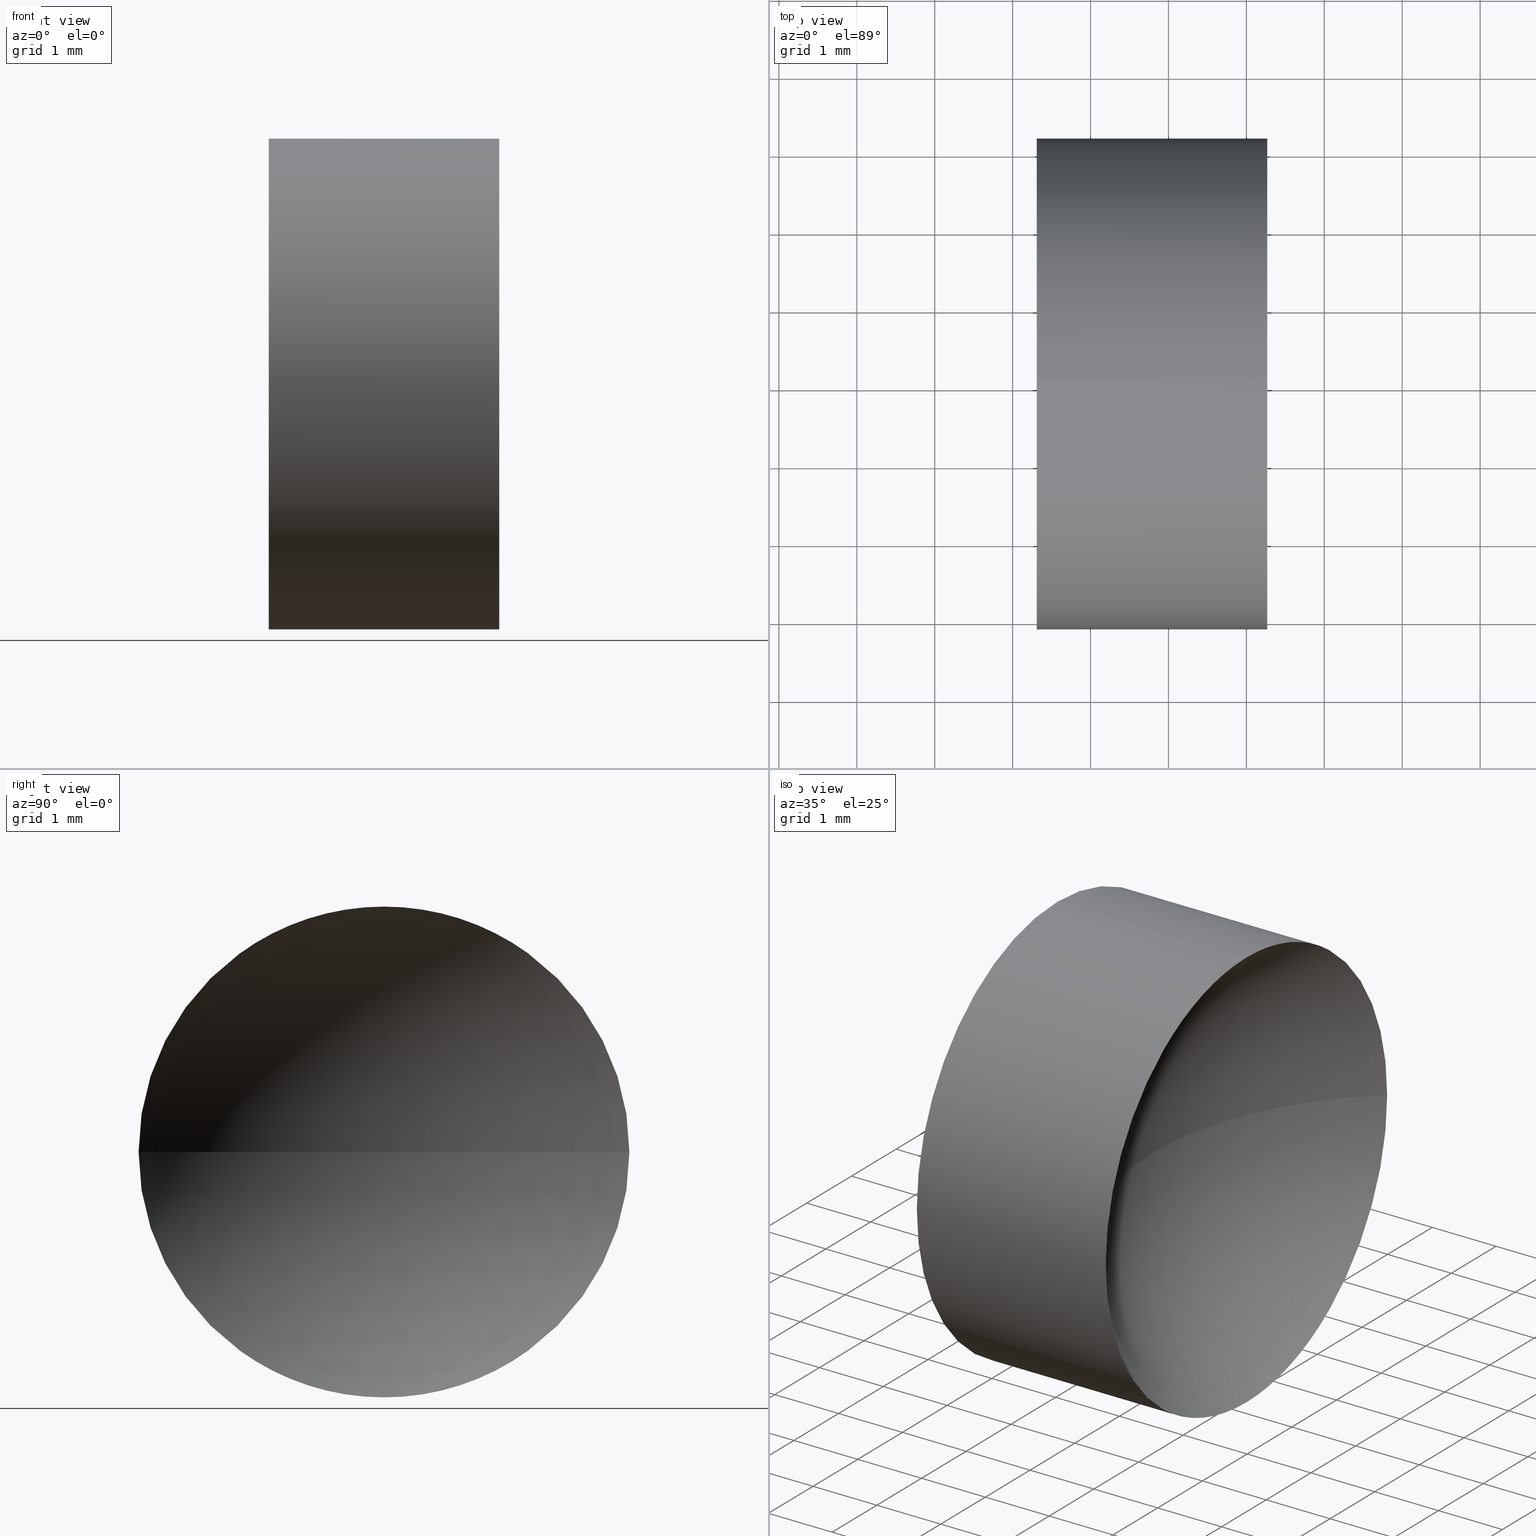
[diagram: canonical four-view strip — front | top / right | iso, engineering-drawing reading convention]
A machine part, canonical four-view strip (front | top / right | iso — engineering-drawing reading convention). The complete STEP part file that produces these views, byte-faithful:
ISO-10303-21;
HEADER;
FILE_DESCRIPTION (( 'STEP AP214' ),
    '1' );
FILE_NAME ('120123.STEP',
    '2019-06-19T01:41:41',
    ( '' ),
    ( '' ),
    'SwSTEP 2.0',
    'SolidWorks 2016',
    '' );
FILE_SCHEMA (( 'AUTOMOTIVE_DESIGN' ));
ENDSEC;

DATA;
#1 = DIRECTION ( 'NONE',  ( 0.0000000000000000000, -1.000000000000000000, 0.0000000000000000000 ) ) ;
#2 = DIRECTION ( 'NONE',  ( -1.000000000000000000, 0.0000000000000000000, 0.0000000000000000000 ) ) ;
#3 = DIRECTION ( 'NONE',  ( 0.0000000000000000000, 0.0000000000000000000, -1.000000000000000000 ) ) ;
#4 = DIRECTION ( 'NONE',  ( -1.000000000000000000, -0.0000000000000000000, -0.0000000000000000000 ) ) ;
#5 = ADVANCED_FACE ( 'NONE', ( #135 ), #50, .T. ) ;
#6 = SURFACE_STYLE_FILL_AREA ( #139 ) ;
#7 = EDGE_CURVE ( 'NONE', #125, #131, #18, .T. ) ;
#8 =( GEOMETRIC_REPRESENTATION_CONTEXT ( 3 ) GLOBAL_UNCERTAINTY_ASSIGNED_CONTEXT ( ( #62 ) ) GLOBAL_UNIT_ASSIGNED_CONTEXT ( ( #151, #165, #79 ) ) REPRESENTATION_CONTEXT ( 'NONE', 'WORKASPACE' ) );
#9 = ADVANCED_BREP_SHAPE_REPRESENTATION ( '120123', ( #123, #64 ), #160 ) ;
#10 = ORIENTED_EDGE ( 'NONE', *, *, #112, .T. ) ;
#11 = DIRECTION ( 'NONE',  ( 0.0000000000000000000, 0.0000000000000000000, 1.000000000000000000 ) ) ;
#12 = APPLICATION_PROTOCOL_DEFINITION ( 'draft international standard', 'automotive_design', 1998, #164 ) ;
#13 = CARTESIAN_POINT ( 'NONE',  ( 20.68403063513288800, 13.03112609140304000, -3.149999999999998100 ) ) ;
#14 = CARTESIAN_POINT ( 'NONE',  ( 25.26823906860704800, 13.03112609140304000, -3.149999999999998100 ) ) ;
#15 = SURFACE_STYLE_USAGE ( .BOTH. , #181 ) ;
#16 = CARTESIAN_POINT ( 'NONE',  ( 25.26823906860704800, 13.03112609140304000, 0.0000000000000000000 ) ) ;
#17 = PRODUCT_DEFINITION_SHAPE ( 'NONE', 'NONE',  #55 ) ;
#18 = CIRCLE ( 'NONE', #133, 3.149999999999998100 ) ;
#19 = AXIS2_PLACEMENT_3D ( 'NONE', #35, #4, #128 ) ;
#20 = MECHANICAL_DESIGN_GEOMETRIC_PRESENTATION_REPRESENTATION (  '', ( #178 ), #8 ) ;
#21 = CARTESIAN_POINT ( 'NONE',  ( 20.68403063513288800, 13.03112609140304000, 3.149999999999998100 ) ) ;
#22 = VERTEX_POINT ( 'NONE', #31 ) ;
#23 = ORIENTED_EDGE ( 'NONE', *, *, #51, .F. ) ;
#24 = FACE_OUTER_BOUND ( 'NONE', #91, .T. ) ;
#25 = VERTEX_POINT ( 'NONE', #150 ) ;
#26 = FACE_OUTER_BOUND ( 'NONE', #176, .T. ) ;
#27 = ORIENTED_EDGE ( 'NONE', *, *, #43, .F. ) ;
#28 = AXIS2_PLACEMENT_3D ( 'NONE', #155, #80, #173 ) ;
#29 =( NAMED_UNIT ( * ) SI_UNIT ( $, .STERADIAN. ) SOLID_ANGLE_UNIT ( ) );
#30 = CARTESIAN_POINT ( 'NONE',  ( 25.26823906860704800, 16.18112609140303700, 3.857637417314161200E-016 ) ) ;
#31 = CARTESIAN_POINT ( 'NONE',  ( 25.26823906860704800, 13.03112609140304000, 3.149999999999998100 ) ) ;
#32 = ORIENTED_EDGE ( 'NONE', *, *, #70, .T. ) ;
#33 = CARTESIAN_POINT ( 'NONE',  ( 27.93926883257449500, 13.03112609140304000, 0.0000000000000000000 ) ) ;
#34 = CYLINDRICAL_SURFACE ( 'NONE', #109, 3.149999999999998100 ) ;
#35 = CARTESIAN_POINT ( 'NONE',  ( 22.30926883257449200, 13.03112609140304000, 0.0000000000000000000 ) ) ;
#36 = PRESENTATION_LAYER_ASSIGNMENT (  '', '', ( #111 ) ) ;
#37 = AXIS2_PLACEMENT_3D ( 'NONE', #16, #61, #102 ) ;
#38 =( NAMED_UNIT ( * ) PLANE_ANGLE_UNIT ( ) SI_UNIT ( $, .RADIAN. ) );
#39 = SHAPE_DEFINITION_REPRESENTATION ( #17, #9 ) ;
#40 = SURFACE_SIDE_STYLE ('',( #110 ) ) ;
#41 = DIRECTION ( 'NONE',  ( -1.000000000000000000, -0.0000000000000000000, -0.0000000000000000000 ) ) ;
#42 = DIRECTION ( 'NONE',  ( 0.0000000000000000000, -1.224646799147353200E-016, 1.000000000000000000 ) ) ;
#43 = EDGE_CURVE ( 'NONE', #163, #131, #60, .T. ) ;
#44 = DIRECTION ( 'NONE',  ( 1.000000000000000000, 0.0000000000000000000, 0.0000000000000000000 ) ) ;
#45 = PRODUCT ( '120123', '120123', '', ( #75 ) ) ;
#46 = CIRCLE ( 'NONE', #28, 3.149999999999998100 ) ;
#47 = PRODUCT_RELATED_PRODUCT_CATEGORY ( 'part', '', ( #45 ) ) ;
#48 = EDGE_LOOP ( 'NONE', ( #90, #134, #121, #126, #49 ) ) ;
#49 = ORIENTED_EDGE ( 'NONE', *, *, #51, .T. ) ;
#50 = CYLINDRICAL_SURFACE ( 'NONE', #97, 3.149999999999998100 ) ;
#51 = EDGE_CURVE ( 'NONE', #22, #161, #132, .T. ) ;
#52 = ORIENTED_EDGE ( 'NONE', *, *, #148, .T. ) ;
#53 = CARTESIAN_POINT ( 'NONE',  ( 0.0000000000000000000, 0.0000000000000000000, 0.0000000000000000000 ) ) ;
#54 =( LENGTH_UNIT ( ) NAMED_UNIT ( * ) SI_UNIT ( .MILLI., .METRE. ) );
#55 = PRODUCT_DEFINITION ( 'δ֪', '', #71, #98 ) ;
#56 = CARTESIAN_POINT ( 'NONE',  ( 23.80926883257449600, 13.03112609140304000, 0.0000000000000000000 ) ) ;
#57 = DIRECTION ( 'NONE',  ( 0.0000000000000000000, 0.0000000000000000000, -1.000000000000000000 ) ) ;
#58 = COLOUR_RGB ( '',1.000000000000000000, 1.000000000000000000, 1.000000000000000000 ) ;
#59 = DIRECTION ( 'NONE',  ( -1.000000000000000000, -0.0000000000000000000, -0.0000000000000000000 ) ) ;
#60 = LINE ( 'NONE', #13, #169 ) ;
#61 = DIRECTION ( 'NONE',  ( -1.000000000000000000, -0.0000000000000000000, -0.0000000000000000000 ) ) ;
#62 = UNCERTAINTY_MEASURE_WITH_UNIT (LENGTH_MEASURE( 1.000000000000000100E-005 ), #151, 'distance_accuracy_value', 'NONE');
#63 = ORIENTED_EDGE ( 'NONE', *, *, #70, .F. ) ;
#64 = AXIS2_PLACEMENT_3D ( 'NONE', #53, #11, #149 ) ;
#65 = ADVANCED_FACE ( 'NONE', ( #157 ), #68, .F. ) ;
#66 = DIRECTION ( 'NONE',  ( 0.0000000000000000000, 0.0000000000000000000, 1.000000000000000000 ) ) ;
#67 = ORIENTED_EDGE ( 'NONE', *, *, #172, .F. ) ;
#68 = SPHERICAL_SURFACE ( 'NONE', #122, 4.129999999999998100 ) ;
#69 = COLOUR_RGB ( '',1.000000000000000000, 1.000000000000000000, 1.000000000000000000 ) ;
#70 = EDGE_CURVE ( 'NONE', #163, #25, #46, .T. ) ;
#71 = PRODUCT_DEFINITION_FORMATION_WITH_SPECIFIED_SOURCE ( '�κ�', '', #45, .NOT_KNOWN. ) ;
#72 = CARTESIAN_POINT ( 'NONE',  ( 25.26823906860704800, 13.03112609140304000, 0.0000000000000000000 ) ) ;
#73 = CLOSED_SHELL ( 'NONE', ( #119, #65, #120, #5, #93 ) ) ;
#74 = FILL_AREA_STYLE_COLOUR ( '', #69 ) ;
#75 = PRODUCT_CONTEXT ( 'NONE', #164, 'mechanical' ) ;
#76 = DIRECTION ( 'NONE',  ( -1.000000000000000000, -0.0000000000000000000, -0.0000000000000000000 ) ) ;
#77 = PRESENTATION_STYLE_ASSIGNMENT (( #15 ) ) ;
#78 = CARTESIAN_POINT ( 'NONE',  ( 27.93926883257449500, 13.03112609140304000, 0.0000000000000000000 ) ) ;
#79 =( NAMED_UNIT ( * ) SI_UNIT ( $, .STERADIAN. ) SOLID_ANGLE_UNIT ( ) );
#80 = DIRECTION ( 'NONE',  ( -1.000000000000000000, -0.0000000000000000000, -0.0000000000000000000 ) ) ;
#81 = EDGE_CURVE ( 'NONE', #131, #125, #96, .T. ) ;
#82 = EDGE_CURVE ( 'NONE', #22, #125, #89, .T. ) ;
#83 = APPLICATION_CONTEXT ( 'automotive_design' ) ;
#84 = CARTESIAN_POINT ( 'NONE',  ( 20.68403063513288800, 13.03112609140304000, 0.0000000000000000000 ) ) ;
#85 = CARTESIAN_POINT ( 'NONE',  ( 22.30926883257449200, 13.03112609140304000, 0.0000000000000000000 ) ) ;
#86 = DIRECTION ( 'NONE',  ( 0.0000000000000000000, 0.0000000000000000000, 1.000000000000000000 ) ) ;
#87 = DIRECTION ( 'NONE',  ( 0.0000000000000000000, 0.0000000000000000000, 1.000000000000000000 ) ) ;
#88 = AXIS2_PLACEMENT_3D ( 'NONE', #33, #57, #2 ) ;
#89 = LINE ( 'NONE', #21, #105 ) ;
#90 = ORIENTED_EDGE ( 'NONE', *, *, #172, .T. ) ;
#91 = EDGE_LOOP ( 'NONE', ( #156, #23, #174, #10 ) ) ;
#92 = FACE_OUTER_BOUND ( 'NONE', #48, .T. ) ;
#93 = ADVANCED_FACE ( 'NONE', ( #26 ), #142, .F. ) ;
#94 = ORIENTED_EDGE ( 'NONE', *, *, #81, .T. ) ;
#95 = EDGE_LOOP ( 'NONE', ( #27, #32, #52, #104, #167 ) ) ;
#96 = CIRCLE ( 'NONE', #19, 3.149999999999998100 ) ;
#97 = AXIS2_PLACEMENT_3D ( 'NONE', #84, #41, #166 ) ;
#98 = PRODUCT_DEFINITION_CONTEXT ( 'detailed design', #83, 'design' ) ;
#99 = PRESENTATION_STYLE_ASSIGNMENT (( #146 ) ) ;
#100 = ORIENTED_EDGE ( 'NONE', *, *, #7, .T. ) ;
#101 = DIRECTION ( 'NONE',  ( 0.0000000000000000000, 0.0000000000000000000, 1.000000000000000000 ) ) ;
#102 = DIRECTION ( 'NONE',  ( 0.0000000000000000000, 0.0000000000000000000, 1.000000000000000000 ) ) ;
#103 = FILL_AREA_STYLE_COLOUR ( '', #58 ) ;
#104 = ORIENTED_EDGE ( 'NONE', *, *, #82, .T. ) ;
#105 = VECTOR ( 'NONE', #116, 1000.000000000000000 ) ;
#106 = DIRECTION ( 'NONE',  ( -1.000000000000000000, -0.0000000000000000000, -0.0000000000000000000 ) ) ;
#107 = EDGE_CURVE ( 'NONE', #161, #108, #127, .T. ) ;
#108 = VERTEX_POINT ( 'NONE', #56 ) ;
#109 = AXIS2_PLACEMENT_3D ( 'NONE', #185, #154, #87 ) ;
#110 = SURFACE_STYLE_FILL_AREA ( #183 ) ;
#111 = STYLED_ITEM ( 'NONE', ( #99 ), #9 ) ;
#112 = EDGE_CURVE ( 'NONE', #25, #108, #124, .T. ) ;
#113 = CARTESIAN_POINT ( 'NONE',  ( 22.30926883257449200, 13.03112609140304000, 3.149999999999998100 ) ) ;
#114 = DIRECTION ( 'NONE',  ( 0.0000000000000000000, -1.000000000000000000, -1.224646799147353200E-016 ) ) ;
#115 = AXIS2_PLACEMENT_3D ( 'NONE', #72, #106, #66 ) ;
#116 = DIRECTION ( 'NONE',  ( -1.000000000000000000, -0.0000000000000000000, -0.0000000000000000000 ) ) ;
#117 = CARTESIAN_POINT ( 'NONE',  ( 22.30926883257449200, 13.03112609140304000, 0.0000000000000000000 ) ) ;
#118 = MECHANICAL_DESIGN_GEOMETRIC_PRESENTATION_REPRESENTATION (  '', ( #111 ), #175 ) ;
#119 = ADVANCED_FACE ( 'NONE', ( #92 ), #34, .T. ) ;
#120 = ADVANCED_FACE ( 'NONE', ( #24 ), #162, .F. ) ;
#121 = ORIENTED_EDGE ( 'NONE', *, *, #7, .F. ) ;
#122 = AXIS2_PLACEMENT_3D ( 'NONE', #184, #143, #144 ) ;
#123 = MANIFOLD_SOLID_BREP ( '��ת1', #73 ) ;
#124 = CIRCLE ( 'NONE', #88, 4.129999999999998100 ) ;
#125 = VERTEX_POINT ( 'NONE', #113 ) ;
#126 = ORIENTED_EDGE ( 'NONE', *, *, #82, .F. ) ;
#127 = CIRCLE ( 'NONE', #141, 4.129999999999998100 ) ;
#128 = DIRECTION ( 'NONE',  ( 0.0000000000000000000, 0.0000000000000000000, 1.000000000000000000 ) ) ;
#129 = ORIENTED_EDGE ( 'NONE', *, *, #107, .T. ) ;
#130 = UNCERTAINTY_MEASURE_WITH_UNIT (LENGTH_MEASURE( 1.000000000000000100E-005 ), #54, 'distance_accuracy_value', 'NONE');
#131 = VERTEX_POINT ( 'NONE', #153 ) ;
#132 = CIRCLE ( 'NONE', #115, 3.149999999999998100 ) ;
#133 = AXIS2_PLACEMENT_3D ( 'NONE', #85, #76, #186 ) ;
#134 = ORIENTED_EDGE ( 'NONE', *, *, #43, .T. ) ;
#135 = FACE_OUTER_BOUND ( 'NONE', #95, .T. ) ;
#136 =( NAMED_UNIT ( * ) SI_UNIT ( $, .STERADIAN. ) SOLID_ANGLE_UNIT ( ) );
#137 = CIRCLE ( 'NONE', #147, 3.149999999999998100 ) ;
#138 =( NAMED_UNIT ( * ) PLANE_ANGLE_UNIT ( ) SI_UNIT ( $, .RADIAN. ) );
#139 = FILL_AREA_STYLE ('',( #103 ) ) ;
#140 = CARTESIAN_POINT ( 'NONE',  ( 25.26823906860704800, 13.03112609140304000, 0.0000000000000000000 ) ) ;
#141 = AXIS2_PLACEMENT_3D ( 'NONE', #168, #42, #114 ) ;
#142 = PLANE ( 'NONE',  #158 ) ;
#143 = DIRECTION ( 'NONE',  ( 0.0000000000000000000, 0.0000000000000000000, 1.000000000000000000 ) ) ;
#144 = DIRECTION ( 'NONE',  ( 0.0000000000000000000, -1.000000000000000000, 0.0000000000000000000 ) ) ;
#145 = PRESENTATION_LAYER_ASSIGNMENT (  '', '', ( #178 ) ) ;
#146 = SURFACE_STYLE_USAGE ( .BOTH. , #40 ) ;
#147 = AXIS2_PLACEMENT_3D ( 'NONE', #140, #59, #101 ) ;
#148 = EDGE_CURVE ( 'NONE', #25, #22, #137, .T. ) ;
#149 = DIRECTION ( 'NONE',  ( 1.000000000000000000, 0.0000000000000000000, 0.0000000000000000000 ) ) ;
#150 = CARTESIAN_POINT ( 'NONE',  ( 25.26823906860704800, 9.881126091403041700, 0.0000000000000000000 ) ) ;
#151 =( LENGTH_UNIT ( ) NAMED_UNIT ( * ) SI_UNIT ( .MILLI., .METRE. ) );
#152 = DIRECTION ( 'NONE',  ( -1.000000000000000000, -0.0000000000000000000, -0.0000000000000000000 ) ) ;
#153 = CARTESIAN_POINT ( 'NONE',  ( 22.30926883257449200, 13.03112609140304000, -3.149999999999998100 ) ) ;
#154 = DIRECTION ( 'NONE',  ( -1.000000000000000000, -0.0000000000000000000, -0.0000000000000000000 ) ) ;
#155 = CARTESIAN_POINT ( 'NONE',  ( 25.26823906860704800, 13.03112609140304000, 0.0000000000000000000 ) ) ;
#156 = ORIENTED_EDGE ( 'NONE', *, *, #107, .F. ) ;
#157 = FACE_OUTER_BOUND ( 'NONE', #159, .T. ) ;
#158 = AXIS2_PLACEMENT_3D ( 'NONE', #117, #44, #3 ) ;
#159 = EDGE_LOOP ( 'NONE', ( #67, #129, #170, #63 ) ) ;
#160 =( GEOMETRIC_REPRESENTATION_CONTEXT ( 3 ) GLOBAL_UNCERTAINTY_ASSIGNED_CONTEXT ( ( #177 ) ) GLOBAL_UNIT_ASSIGNED_CONTEXT ( ( #179, #38, #136 ) ) REPRESENTATION_CONTEXT ( 'NONE', 'WORKASPACE' ) );
#161 = VERTEX_POINT ( 'NONE', #30 ) ;
#162 = SPHERICAL_SURFACE ( 'NONE', #171, 4.129999999999998100 ) ;
#163 = VERTEX_POINT ( 'NONE', #14 ) ;
#164 = APPLICATION_CONTEXT ( 'automotive_design' ) ;
#165 =( NAMED_UNIT ( * ) PLANE_ANGLE_UNIT ( ) SI_UNIT ( $, .RADIAN. ) );
#166 = DIRECTION ( 'NONE',  ( 0.0000000000000000000, 0.0000000000000000000, 1.000000000000000000 ) ) ;
#167 = ORIENTED_EDGE ( 'NONE', *, *, #81, .F. ) ;
#168 = CARTESIAN_POINT ( 'NONE',  ( 27.93926883257449500, 13.03112609140304000, 0.0000000000000000000 ) ) ;
#169 = VECTOR ( 'NONE', #152, 1000.000000000000000 ) ;
#170 = ORIENTED_EDGE ( 'NONE', *, *, #112, .F. ) ;
#171 = AXIS2_PLACEMENT_3D ( 'NONE', #78, #86, #1 ) ;
#172 = EDGE_CURVE ( 'NONE', #161, #163, #182, .T. ) ;
#173 = DIRECTION ( 'NONE',  ( 0.0000000000000000000, 0.0000000000000000000, 1.000000000000000000 ) ) ;
#174 = ORIENTED_EDGE ( 'NONE', *, *, #148, .F. ) ;
#175 =( GEOMETRIC_REPRESENTATION_CONTEXT ( 3 ) GLOBAL_UNCERTAINTY_ASSIGNED_CONTEXT ( ( #130 ) ) GLOBAL_UNIT_ASSIGNED_CONTEXT ( ( #54, #138, #29 ) ) REPRESENTATION_CONTEXT ( 'NONE', 'WORKASPACE' ) );
#176 = EDGE_LOOP ( 'NONE', ( #100, #94 ) ) ;
#177 = UNCERTAINTY_MEASURE_WITH_UNIT (LENGTH_MEASURE( 1.000000000000000100E-005 ), #179, 'distance_accuracy_value', 'NONE');
#178 = STYLED_ITEM ( 'NONE', ( #77 ), #123 ) ;
#179 =( LENGTH_UNIT ( ) NAMED_UNIT ( * ) SI_UNIT ( .MILLI., .METRE. ) );
#180 = APPLICATION_PROTOCOL_DEFINITION ( 'draft international standard', 'automotive_design', 1998, #83 ) ;
#181 = SURFACE_SIDE_STYLE ('',( #6 ) ) ;
#182 = CIRCLE ( 'NONE', #37, 3.149999999999998100 ) ;
#183 = FILL_AREA_STYLE ('',( #74 ) ) ;
#184 = CARTESIAN_POINT ( 'NONE',  ( 27.93926883257449500, 13.03112609140304000, 0.0000000000000000000 ) ) ;
#185 = CARTESIAN_POINT ( 'NONE',  ( 20.68403063513288800, 13.03112609140304000, 0.0000000000000000000 ) ) ;
#186 = DIRECTION ( 'NONE',  ( 0.0000000000000000000, 0.0000000000000000000, 1.000000000000000000 ) ) ;
ENDSEC;
END-ISO-10303-21;
